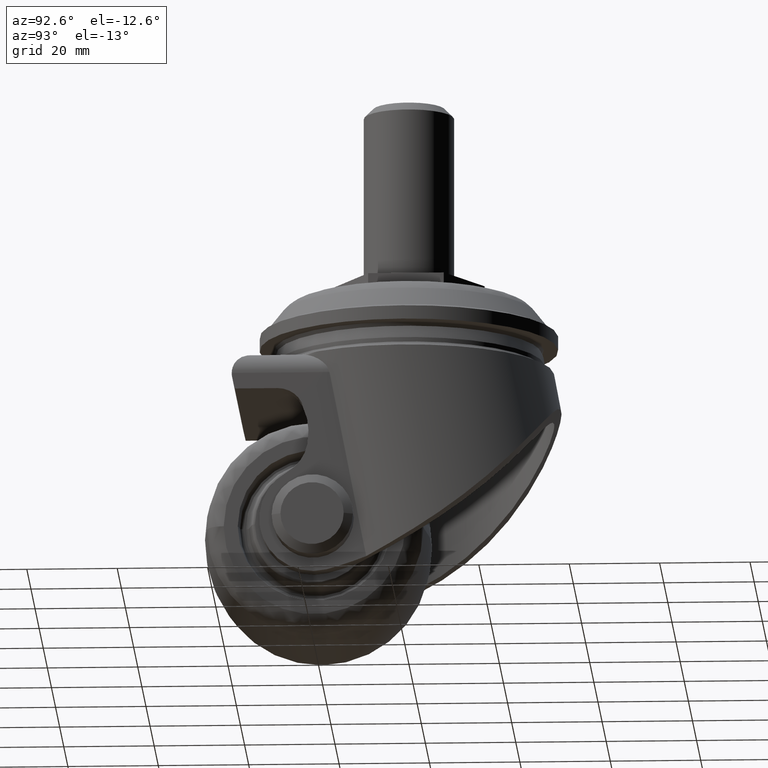
[diagram: clean part render]
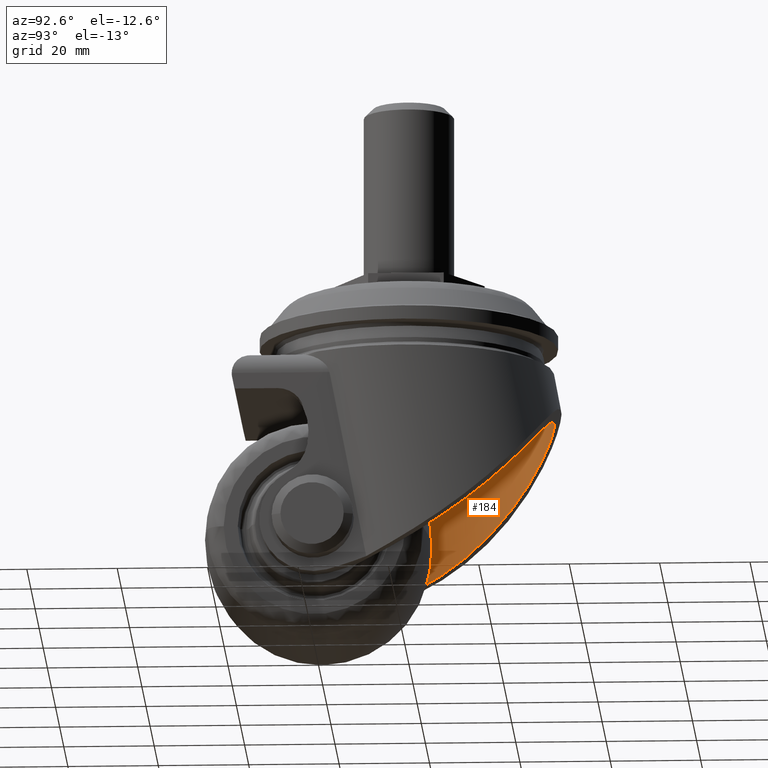
[diagram: same view with one face highlighted and labeled with its STEP entity id]
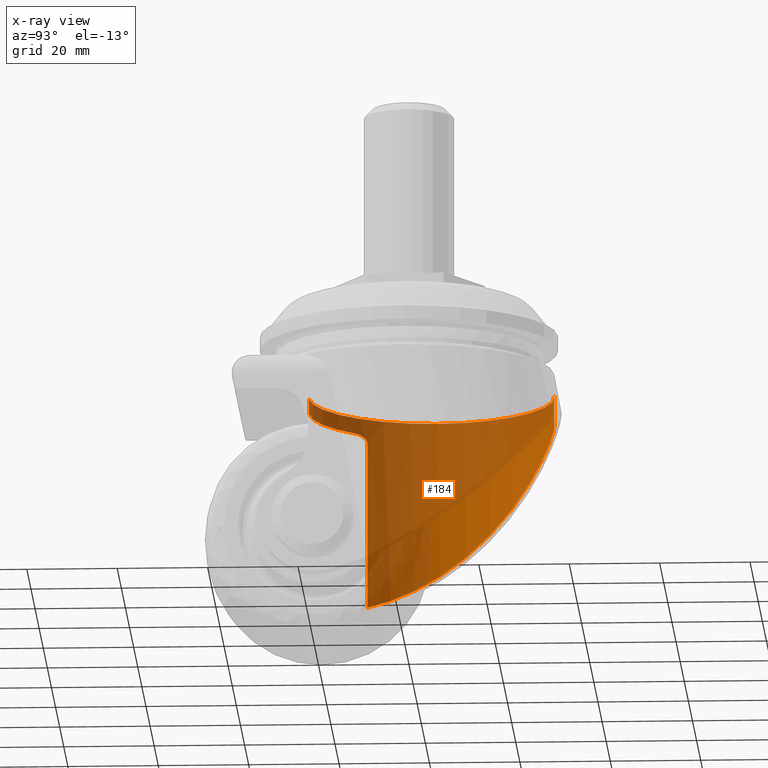
[diagram: x-ray of the same camera — body ghosted, the highlighted face saturated]
A machine part, auxiliary view. The second image highlights one B-rep face of the part: STEP entity #184.
The next image is the same camera in x-ray: the body ghosted, the highlighted face saturated — about 75% of this face is hidden behind the body in this view.
In plain terms, the highlighted cylindrical surface (partial cylindrical patch) has radius 27.15 mm, axis along (0, 0, 1).
Its self-contained STEP definition (entity closure, byte-faithful):
#184=ADVANCED_FACE('',(#1014),#1013,.F.);
#1013=CYLINDRICAL_SURFACE('',#2492,2.71500000000E+01);
#1014=FACE_OUTER_BOUND('',#2493,.T.);
#2489=CARTESIAN_POINT('',(0.00000000000E+00,-7.00000000000E+01,-5.00000000000E+00));
#2490=DIRECTION('',(-0.00000000000E+00,1.00000000000E+00,-0.00000000000E+00));
#2491=DIRECTION('',(-0.00000000000E+00,-0.00000000000E+00,1.00000000000E+00));
#2492=AXIS2_PLACEMENT_3D('',#2489,#2490,#2491);
#2493=EDGE_LOOP('',(#4037,#4038,#4039,#4040,#4041,#4042,#4043));
#4037=ORIENTED_EDGE('',*,*,#4638,.F.);
#4038=ORIENTED_EDGE('',*,*,#4635,.F.);
#4039=ORIENTED_EDGE('',*,*,#4584,.F.);
#4040=ORIENTED_EDGE('',*,*,#4473,.F.);
#4041=ORIENTED_EDGE('',*,*,#4493,.F.);
#4042=ORIENTED_EDGE('',*,*,#4535,.T.);
#4043=ORIENTED_EDGE('',*,*,#4637,.T.);
#4473=EDGE_CURVE('',#5040,#5047,#5048,.T.);
#4493=EDGE_CURVE('',#5177,#5040,#5185,.T.);
#4535=EDGE_CURVE('',#5177,#5465,#5472,.T.);
#4584=EDGE_CURVE('',#5047,#5793,#5794,.T.);
#4635=EDGE_CURVE('',#5793,#6123,#6124,.T.);
#4637=EDGE_CURVE('',#5465,#6130,#6137,.T.);
#4638=EDGE_CURVE('',#6123,#6130,#6143,.T.);
#5040=VERTEX_POINT('',#7487);
#5047=VERTEX_POINT('',#7491);
#5048=(BOUNDED_CURVE() B_SPLINE_CURVE(3,(#7492,#7493,#7494,#7495,#7496,#7497,#7498,#7499,#7500,#7501,#7502,#7503,#7504,#7505,#7506,#7507),.UNSPECIFIED.,.F.,.F.) B_SPLINE_CURVE_WITH_KNOTS((4,2,2,2,2,2,2,4),(0.00000000000E+00,2.62336785644E-04,5.24673571288E-04,1.04934714258E-03,2.09869428515E-03,2.62336785644E-03,3.14804142773E-03,4.19738857030E-03),.UNSPECIFIED.) CURVE() GEOMETRIC_REPRESENTATION_ITEM() RATIONAL_B_SPLINE_CURVE((1.00000000000E+00,1.00000000000E+00,1.00000000000E+00,1.00000000000E+00,1.00000000000E+00,1.00000000000E+00,1.00000000000E+00,1.00000000000E+00,1.00000000000E+00,1.00000000000E+00,1.00000000000E+00,1.00000000000E+00,1.00000000000E+00,1.00000000000E+00,1.00000000000E+00,1.00000000000E+00)) REPRESENTATION_ITEM('') );
#5177=VERTEX_POINT('',#7621);
#5185=LINE('',#7627,#7628);
#5465=VERTEX_POINT('',#7829);
#5472=(BOUNDED_CURVE() B_SPLINE_CURVE(3,(#7878,#7879,#7880,#7881,#7882,#7883,#7884,#7885,#7886,#7887,#7888,#7889,#7890,#7891,#7892,#7893,#7894,#7895,#7896,#7897,#7898,#7899,#7900,#7901,#7902,#7903,#7904,#7905,#7906,#7907,#7908,#7909,#7910,#7911,#7912,#7913,#7914,#7915,#7916,#7917,#7918,#7919,#7920,#7921,#7922,#7923,#7924,#7925),.UNSPECIFIED.,.F.,.F.) B_SPLINE_CURVE_WITH_KNOTS((4,2,2,2,2,2,2,2,2,2,2,2,2,2,2,2,2,2,2,2,2,2,2,4),(9.76660893143E-03,1.41154213892E-02,1.62898276180E-02,1.84642338469E-02,2.28130463046E-02,2.71618587624E-02,3.15106712201E-02,3.58594836778E-02,3.80338899067E-02,4.02082961356E-02,4.45571085933E-02,4.89059210511E-02,5.10803272799E-02,5.32547335088E-02,5.76035459665E-02,6.19523584243E-02,6.41267646531E-02,6.63011708820E-02,7.06499833397E-02,7.28243895686E-02,7.49987957975E-02,7.71732020264E-02,7.82604051408E-02,7.93225051012E-02),.UNSPECIFIED.) CURVE() GEOMETRIC_REPRESENTATION_ITEM() RATIONAL_B_SPLINE_CURVE((1.00000000000E+00,1.00000000000E+00,1.00000000000E+00,1.00000000000E+00,1.00000000000E+00,1.00000000000E+00,1.00000000000E+00,1.00000000000E+00,1.00000000000E+00,1.00000000000E+00,1.00000000000E+00,1.00000000000E+00,1.00000000000E+00,1.00000000000E+00,1.00000000000E+00,1.00000000000E+00,1.00000000000E+00,1.00000000000E+00,1.00000000000E+00,1.00000000000E+00,1.00000000000E+00,1.00000000000E+00,1.00000000000E+00,1.00000000000E+00,1.00000000000E+00,1.00000000000E+00,1.00000000000E+00,1.00000000000E+00,1.00000000000E+00,1.00000000000E+00,1.00000000000E+00,1.00000000000E+00,1.00000000000E+00,1.00000000000E+00,1.00000000000E+00,1.00000000000E+00,1.00000000000E+00,1.00000000000E+00,1.00000000000E+00,1.00000000000E+00,1.00000000000E+00,1.00000000000E+00,1.00000000000E+00,1.00000000000E+00,1.00000000000E+00,1.00000000000E+00,1.00000000000E+00,1.00000000000E+00)) REPRESENTATION_ITEM('') );
#5793=VERTEX_POINT('',#8255);
#5794=CIRCLE('',#8259,2.71500000000E+01);
#6123=VERTEX_POINT('',#8531);
#6124=(BOUNDED_CURVE() B_SPLINE_CURVE(1,(#8532,#8533),.UNSPECIFIED.,.F.,.F.) B_SPLINE_CURVE_WITH_KNOTS((2,2),(8.48017633706E-01,9.16666666031E-01),.UNSPECIFIED.) CURVE() GEOMETRIC_REPRESENTATION_ITEM() RATIONAL_B_SPLINE_CURVE((1.00000000000E+00,1.00000000000E+00)) REPRESENTATION_ITEM('') );
#6130=VERTEX_POINT('',#8534);
#6137=(BOUNDED_CURVE() B_SPLINE_CURVE(1,(#8539,#8540),.UNSPECIFIED.,.F.,.F.) B_SPLINE_CURVE_WITH_KNOTS((2,2),(7.91001967839E-01,9.16666666667E-01),.UNSPECIFIED.) CURVE() GEOMETRIC_REPRESENTATION_ITEM() RATIONAL_B_SPLINE_CURVE((7.50000000000E-01,7.50000000000E-01)) REPRESENTATION_ITEM('') );
#6143=CIRCLE('',#8544,2.71500000000E+01);
#7487=CARTESIAN_POINT('',(-2.25000000000E+01,-2.65000000000E+01,1.01944891326E+01));
#7491=CARTESIAN_POINT('',(-2.05000000000E+01,-2.45000000000E+01,1.28009128979E+01));
#7492=CARTESIAN_POINT('',(-2.25000000000E+01,-2.65000000000E+01,1.01944891326E+01));
#7493=CARTESIAN_POINT('',(-2.25000000000E+01,-2.64111905949E+01,1.01944891326E+01));
#7494=CARTESIAN_POINT('',(-2.24941177900E+01,-2.63242461096E+01,1.02032090580E+01));
#7495=CARTESIAN_POINT('',(-2.24716718407E+01,-2.61537264912E+01,1.02363665450E+01));
#7496=CARTESIAN_POINT('',(-2.24548333820E+01,-2.60694605448E+01,1.02612036997E+01));
#7497=CARTESIAN_POINT('',(-2.23920501524E+01,-2.58313466391E+01,1.03533094898E+01));
#7498=CARTESIAN_POINT('',(-2.23329881601E+01,-2.56868611001E+01,1.04393771256E+01));
#7499=CARTESIAN_POINT('',(-2.21282173405E+01,-2.53028909181E+01,1.07328129101E+01));
#7500=CARTESIAN_POINT('',(-2.19547174230E+01,-2.51064790965E+01,1.09752978531E+01));
#7501=CARTESIAN_POINT('',(-2.16751546231E+01,-2.48771822548E+01,1.13503665623E+01));
#7502=CARTESIAN_POINT('',(-2.15780252953E+01,-2.48114423367E+01,1.14784257017E+01));
#7503=CARTESIAN_POINT('',(-2.13762821737E+01,-2.46984742379E+01,1.17393025447E+01));
#7504=CARTESIAN_POINT('',(-2.12712547319E+01,-2.46512319207E+01,1.18726167087E+01));
#7505=CARTESIAN_POINT('',(-2.09514178121E+01,-2.45385385426E+01,1.22706827175E+01));
#7506=CARTESIAN_POINT('',(-2.07300825634E+01,-2.45000000000E+01,1.25359437597E+01));
#7507=CARTESIAN_POINT('',(-2.05000000000E+01,-2.45000000000E+01,1.28009128979E+01));
#7621=CARTESIAN_POINT('',(-2.25000000000E+01,-6.34866387430E+01,1.01944891326E+01));
#7627=CARTESIAN_POINT('',(-2.25000000000E+01,-6.34866387430E+01,1.01944891326E+01));
#7628=VECTOR('',#7629,3.69866387430E+01);
#7629=DIRECTION('',(0.00000000000E+00,1.00000000000E+00,0.00000000000E+00));
#7829=CARTESIAN_POINT('',(-8.08290459103E-06,-2.74068881136E+01,-3.21500000054E+01));
#7878=CARTESIAN_POINT('',(-2.25000000000E+01,-6.34866387430E+01,1.01944891326E+01));
#7879=CARTESIAN_POINT('',(-2.32842936652E+01,-6.30619446105E+01,9.03310704769E+00));
#7880=CARTESIAN_POINT('',(-2.39623017325E+01,-6.25937575201E+01,7.83628719720E+00));
#7881=CARTESIAN_POINT('',(-2.48323273410E+01,-6.18189635357E+01,5.99717860015E+00));
#7882=CARTESIAN_POINT('',(-2.50977378483E+01,-6.15485980711E+01,5.37678513027E+00));
#7883=CARTESIAN_POINT('',(-2.55803857651E+01,-6.09822420387E+01,4.12238887842E+00));
#7884=CARTESIAN_POINT('',(-2.57982849664E+01,-6.06851236236E+01,3.48607788883E+00));
#7885=CARTESIAN_POINT('',(-2.63752494603E+01,-5.97615162474E+01,1.57562289720E+00));
#7886=CARTESIAN_POINT('',(-2.66568157920E+01,-5.91064948649E+01,3.06942263428E-01));
#7887=CARTESIAN_POINT('',(-2.70369511972E+01,-5.77157820361E+01,-2.21562676410E+00));
#7888=CARTESIAN_POINT('',(-2.71353945635E+01,-5.69800967619E+01,-3.46953877227E+00));
#7889=CARTESIAN_POINT('',(-2.71615976371E+01,-5.54250470783E+01,-5.95893872803E+00));
#7890=CARTESIAN_POINT('',(-2.70891687266E+01,-5.46194230803E+01,-7.17242495649E+00));
#7891=CARTESIAN_POINT('',(-2.67946681210E+01,-5.29559747154E+01,-9.53742799091E+00));
#7892=CARTESIAN_POINT('',(-2.65724950273E+01,-5.20977439097E+01,-1.06895704974E+01));
#7893=CARTESIAN_POINT('',(-2.61357813626E+01,-5.07715955016E+01,-1.23742785187E+01));
#7894=CARTESIAN_POINT('',(-2.59725730173E+01,-5.03222543289E+01,-1.29295697101E+01));
#7895=CARTESIAN_POINT('',(-2.56138488601E+01,-4.94146002246E+01,-1.40212732747E+01));
#7896=CARTESIAN_POINT('',(-2.54189626560E+01,-4.89577225177E+01,-1.45560236323E+01));
#7897=CARTESIAN_POINT('',(-2.47901115408E+01,-4.75784296998E+01,-1.61286958115E+01));
#7898=CARTESIAN_POINT('',(-2.43121791891E+01,-4.66473242091E+01,-1.71351280710E+01));
#7899=CARTESIAN_POINT('',(-2.32456690614E+01,-4.47651984346E+01,-1.90706169057E+01));
#7900=CARTESIAN_POINT('',(-2.26570979921E+01,-4.38141548535E+01,-1.99996547455E+01));
#7901=CARTESIAN_POINT('',(-2.16907957998E+01,-4.23760002201E+01,-2.13381359263E+01));
#7902=CARTESIAN_POINT('',(-2.13538990123E+01,-4.18935864526E+01,-2.17760604115E+01));
#7903=CARTESIAN_POINT('',(-2.06567225740E+01,-4.09329809377E+01,-2.26273939780E+01));
#7904=CARTESIAN_POINT('',(-2.02963312117E+01,-4.04545157117E+01,-2.30411158852E+01));
#7905=CARTESIAN_POINT('',(-1.91793195147E+01,-3.90260810161E+01,-2.42478023449E+01));
#7906=CARTESIAN_POINT('',(-1.83871879794E+01,-3.80828766115E+01,-2.50064301263E+01));
#7907=CARTESIAN_POINT('',(-1.66988366132E+01,-3.62261769076E+01,-2.64358294440E+01));
#7908=CARTESIAN_POINT('',(-1.58028555137E+01,-3.53124997743E+01,-2.71066553019E+01));
#7909=CARTESIAN_POINT('',(-1.43642729129E+01,-3.39790022175E+01,-2.80460007689E+01));
#7910=CARTESIAN_POINT('',(-1.38688573278E+01,-3.35407510784E+01,-2.83479233816E+01));
#7911=CARTESIAN_POINT('',(-1.28412965777E+01,-3.26806853070E+01,-2.89284732487E+01));
#7912=CARTESIAN_POINT('',(-1.23071197617E+01,-3.22573815763E+01,-2.92080469063E+01));
#7913=CARTESIAN_POINT('',(-1.06573166798E+01,-3.10339058760E+01,-3.00006605627E+01));
#7914=CARTESIAN_POINT('',(-9.49617023198E+00,-3.02782892592E+01,-3.04688287172E+01));
#7915=CARTESIAN_POINT('',(-7.62410590878E+00,-2.92868290099E+01,-3.10657726802E+01));
#7916=CARTESIAN_POINT('',(-6.97545844046E+00,-2.89796785271E+01,-3.12473945547E+01));
#7917=CARTESIAN_POINT('',(-5.65585765710E+00,-2.84394567094E+01,-3.15630196990E+01));
#7918=CARTESIAN_POINT('',(-4.98196965811E+00,-2.82045711487E+01,-3.16981442014E+01));
#7919=CARTESIAN_POINT('',(-3.60179574625E+00,-2.78174741576E+01,-3.19191008927E+01));
#7920=CARTESIAN_POINT('',(-2.89551897628E+00,-2.76652453305E+01,-3.20049572745E+01));
#7921=CARTESIAN_POINT('',(-1.80777022018E+00,-2.75101034624E+01,-3.20921903639E+01));
#7922=CARTESIAN_POINT('',(-1.43851482407E+00,-2.74705635403E+01,-3.21143506257E+01));
#7923=CARTESIAN_POINT('',(-7.13161928608E-01,-2.74194061919E+01,-3.21430024154E+01));
#7924=CARTESIAN_POINT('',(-3.55972168137E-01,-2.74068884132E+01,-3.21500000472E+01));
#7925=CARTESIAN_POINT('',(-8.08290459107E-06,-2.74068881136E+01,-3.21500000054E+01));
#8255=CARTESIAN_POINT('',(-2.14581128972E-15,-2.45000000000E+01,2.21500000000E+01));
#8256=CARTESIAN_POINT('',(0.00000000000E+00,-2.45000000000E+01,-5.00000000000E+00));
#8257=DIRECTION('',(0.00000000000E+00,1.00000000000E+00,-0.00000000000E+00));
#8258=DIRECTION('',(7.55064456722E-01,0.00000000000E+00,6.55650567143E-01));
#8259=AXIS2_PLACEMENT_3D('',#8256,#8257,#8258);
#8531=CARTESIAN_POINT('',(1.18423789293E-15,-2.10000000000E+01,2.21500000000E+01));
#8532=CARTESIAN_POINT('',(0.00000000000E+00,-2.44999999961E+01,2.21500000000E+01));
#8533=CARTESIAN_POINT('',(0.00000000000E+00,-2.10000000324E+01,2.21500000000E+01));
#8534=CARTESIAN_POINT('',(0.00000000000E+00,-2.10000000000E+01,-3.21500000000E+01));
#8539=CARTESIAN_POINT('',(0.00000000000E+00,-2.74068847942E+01,-3.21500000000E+01));
#8540=CARTESIAN_POINT('',(0.00000000000E+00,-2.10000000000E+01,-3.21500000000E+01));
#8541=CARTESIAN_POINT('',(0.00000000000E+00,-2.10000000000E+01,-5.00000000000E+00));
#8542=DIRECTION('',(0.00000000000E+00,-1.00000000000E+00,-0.00000000000E+00));
#8543=DIRECTION('',(-1.22460635382E-16,0.00000000000E+00,-1.00000000000E+00));
#8544=AXIS2_PLACEMENT_3D('',#8541,#8542,#8543);